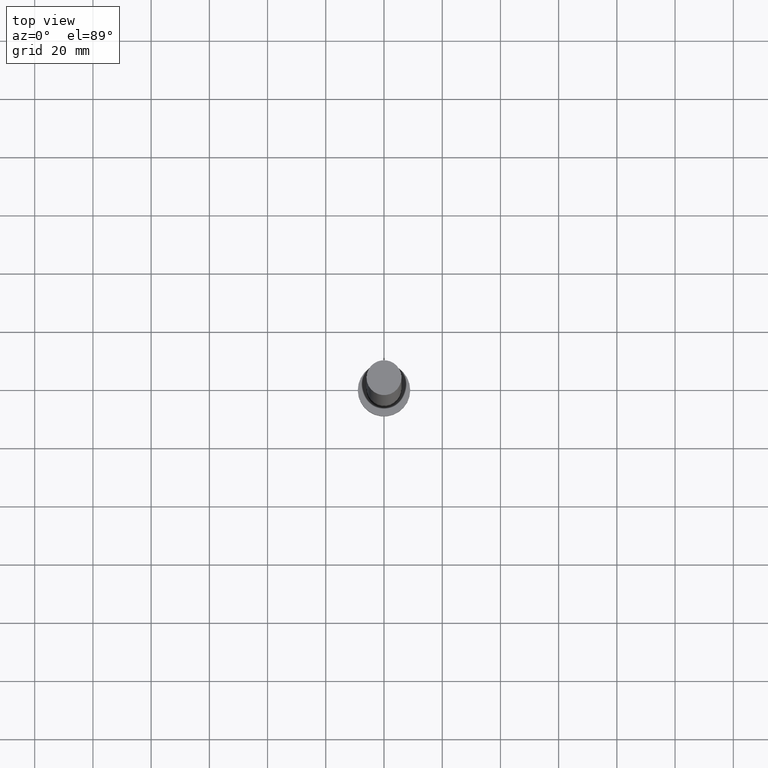
[diagram: clean part render]
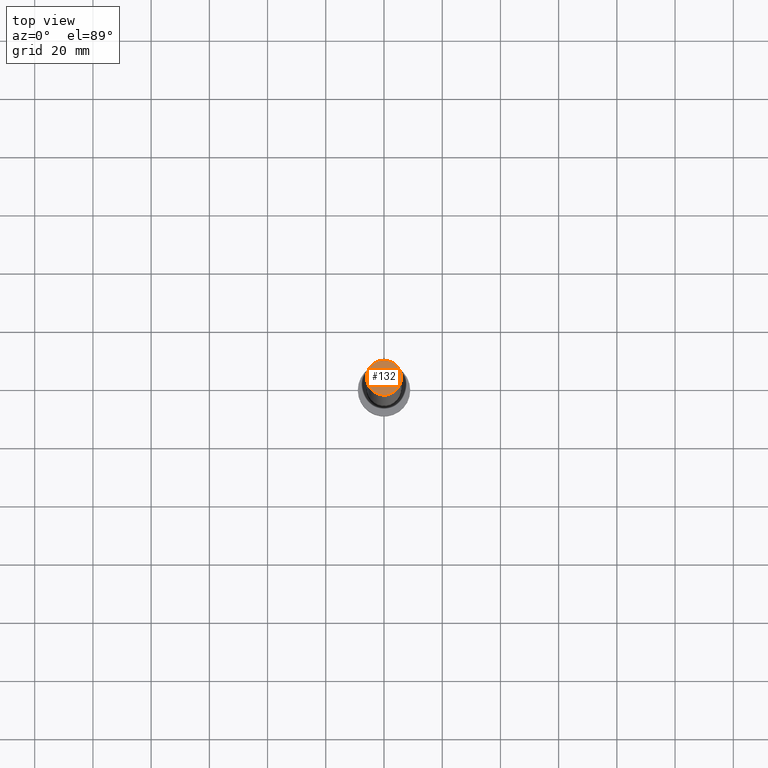
[diagram: same view with one face highlighted and labeled with its STEP entity id]
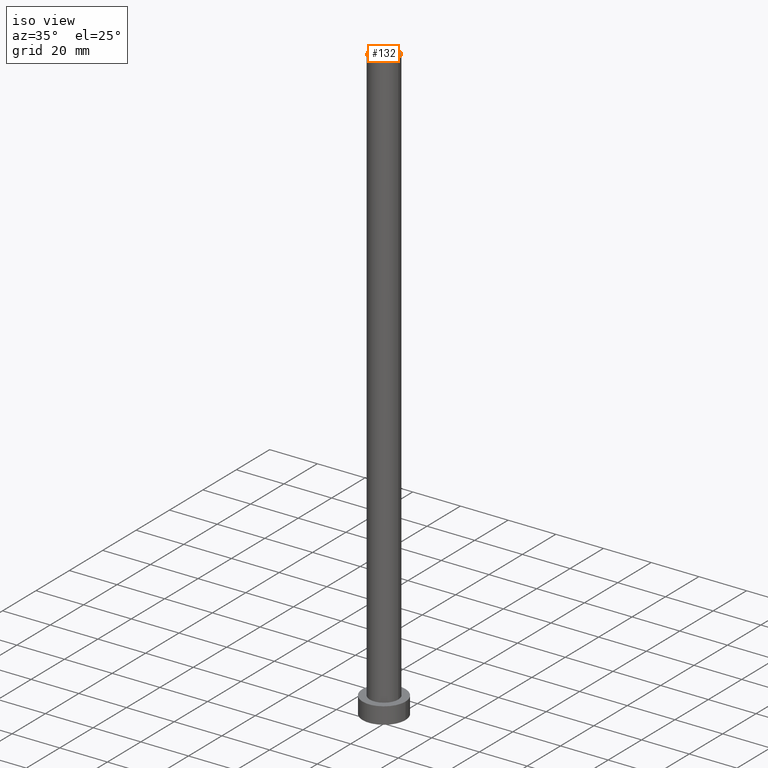
[diagram: same view with one face highlighted and labeled with its STEP entity id]
A machine part, top view. The second image highlights one B-rep face of the part: STEP entity #132.
A second angle (iso view) of the same face is appended — the face is thin or edge-on in the first view.
In plain terms, the highlighted planar face has unit normal (0, 0, 1).
Its self-contained STEP definition (entity closure, byte-faithful):
#3 = CARTESIAN_POINT ( 'NONE',  ( 0.000000000000000000, 0.000000000000000000, 250.0000000000000000 ) ) ;
#5 = DIRECTION ( 'NONE',  ( 0.000000000000000000, 0.000000000000000000, 1.000000000000000000 ) ) ;
#7 = DIRECTION ( 'NONE',  ( 0.000000000000000000, 0.000000000000000000, 1.000000000000000000 ) ) ;
#54 = CIRCLE ( 'NONE', #112, 6.000000000000000888 ) ;
#59 = VERTEX_POINT ( 'NONE', #254 ) ;
#82 = CIRCLE ( 'NONE', #146, 6.000000000000000888 ) ;
#85 = CARTESIAN_POINT ( 'NONE',  ( 0.000000000000000000, 0.000000000000000000, 250.0000000000000000 ) ) ;
#94 = ORIENTED_EDGE ( 'NONE', *, *, #211, .T. ) ;
#112 = AXIS2_PLACEMENT_3D ( 'NONE', #198, #7, #143 ) ;
#132 = ADVANCED_FACE ( 'NONE', ( #217 ), #182, .T. ) ;
#133 = VERTEX_POINT ( 'NONE', #216 ) ;
#140 = DIRECTION ( 'NONE',  ( 1.000000000000000000, 0.000000000000000000, 0.000000000000000000 ) ) ;
#143 = DIRECTION ( 'NONE',  ( 1.000000000000000000, 0.000000000000000000, 0.000000000000000000 ) ) ;
#146 = AXIS2_PLACEMENT_3D ( 'NONE', #85, #238, #140 ) ;
#153 = AXIS2_PLACEMENT_3D ( 'NONE', #3, #5, #194 ) ;
#182 = PLANE ( 'NONE',  #153 ) ;
#194 = DIRECTION ( 'NONE',  ( 1.000000000000000000, 0.000000000000000000, -0.000000000000000000 ) ) ;
#198 = CARTESIAN_POINT ( 'NONE',  ( 0.000000000000000000, 0.000000000000000000, 250.0000000000000000 ) ) ;
#211 = EDGE_CURVE ( 'NONE', #59, #133, #54, .T. ) ;
#216 = CARTESIAN_POINT ( 'NONE',  ( 6.000000000000000888, 7.347880794884120722E-16, 250.0000000000000000 ) ) ;
#217 = FACE_OUTER_BOUND ( 'NONE', #251, .T. ) ;
#238 = DIRECTION ( 'NONE',  ( 0.000000000000000000, 0.000000000000000000, 1.000000000000000000 ) ) ;
#250 = EDGE_CURVE ( 'NONE', #133, #59, #82, .T. ) ;
#251 = EDGE_LOOP ( 'NONE', ( #94, #253 ) ) ;
#253 = ORIENTED_EDGE ( 'NONE', *, *, #250, .T. ) ;
#254 = CARTESIAN_POINT ( 'NONE',  ( -6.000000000000000888, 0.000000000000000000, 250.0000000000000000 ) ) ;